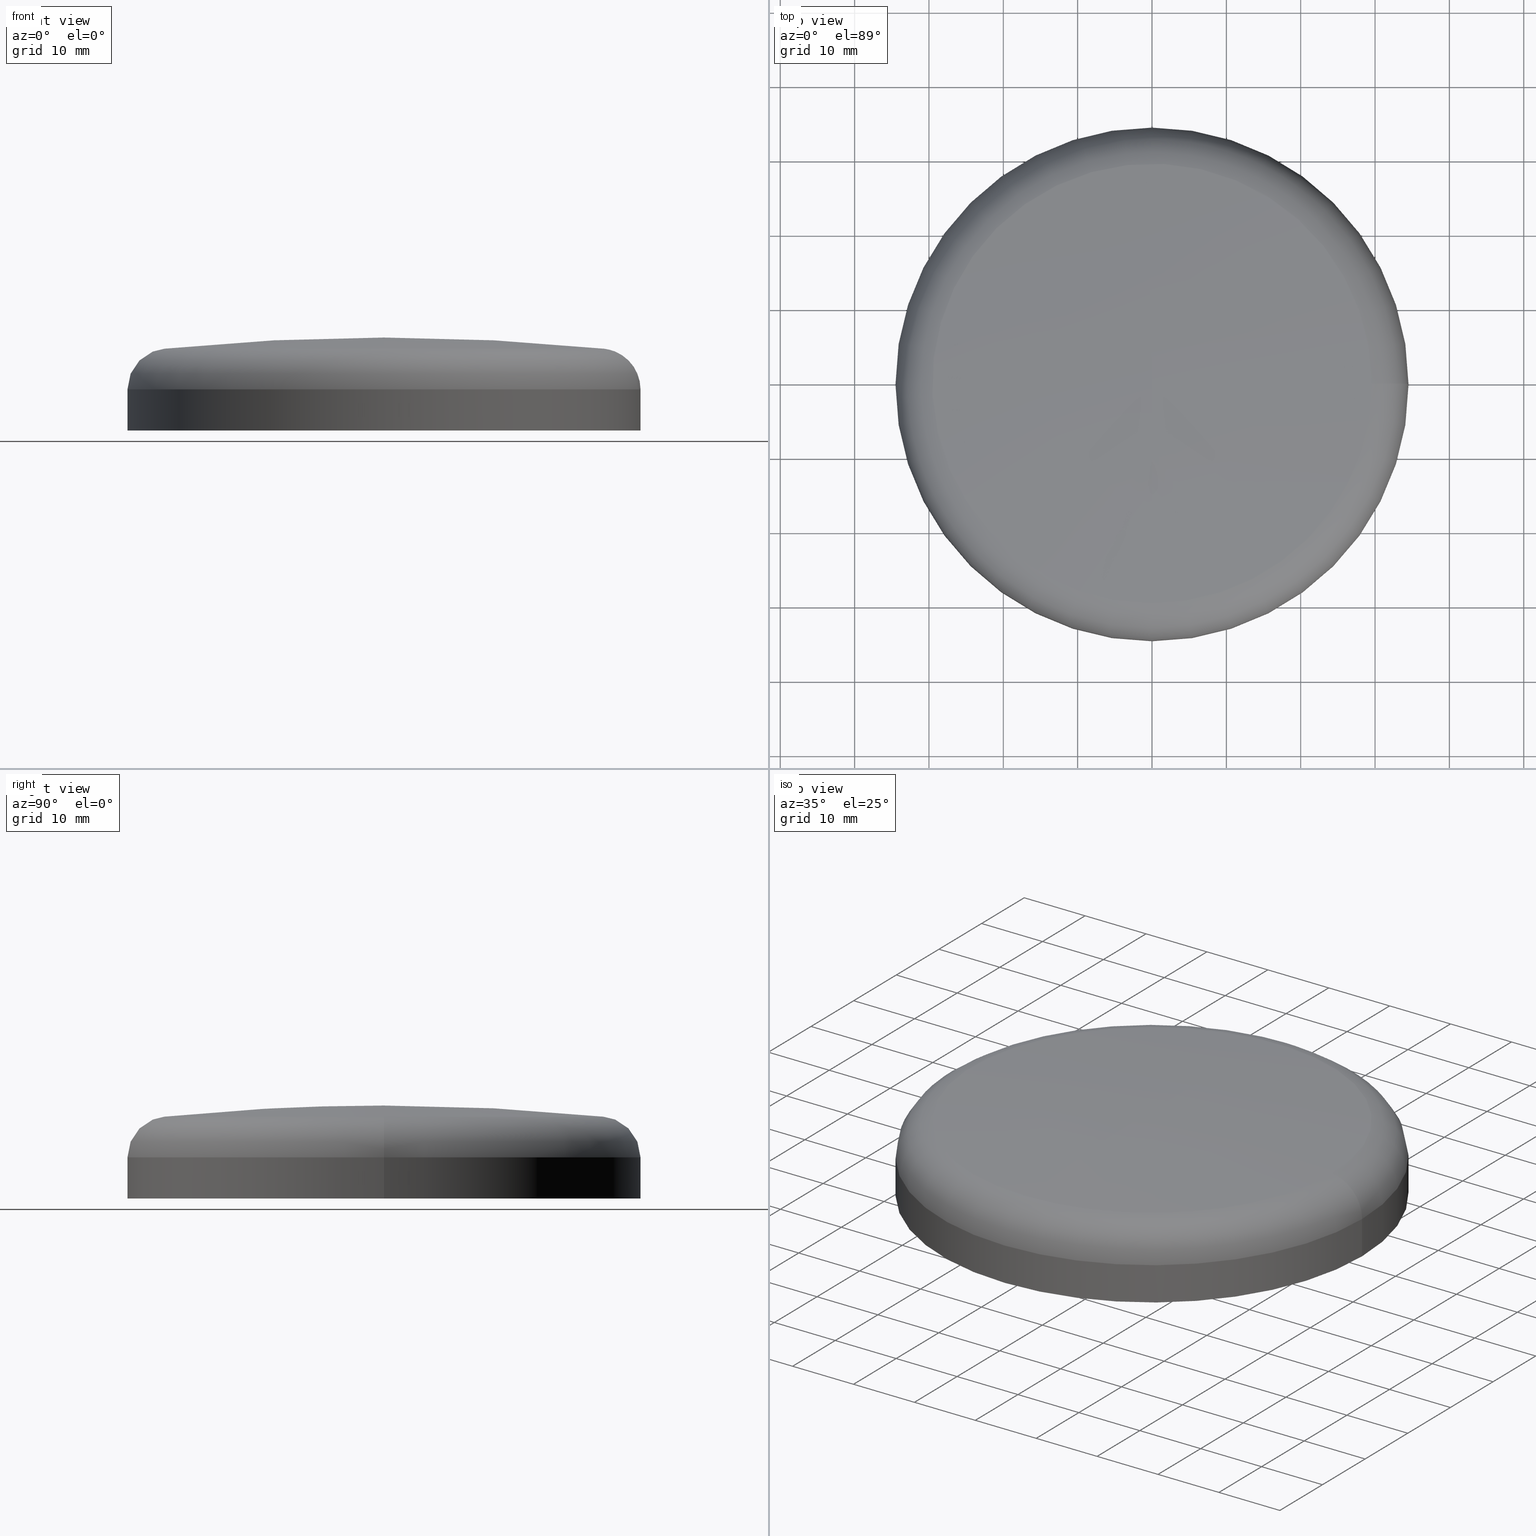
[diagram: canonical four-view strip — front | top / right | iso, engineering-drawing reading convention]
A machine part, canonical four-view strip (front | top / right | iso — engineering-drawing reading convention). The complete STEP part file that produces these views, byte-faithful:
ISO-10303-21;
HEADER;
/* Generated by software containing ST-Developer
 * from STEP Tools, Inc. (www.steptools.com) 
 */
/* OPTION: using custom schema-name function */

FILE_DESCRIPTION(
/* description */ (''),
/* implementation_level */ '2;1');

FILE_NAME(
/* name */ 'Deckel Modul 70.stp',
/* time_stamp */ '2013-03-05T11:58:21+01:00',
/* author */ (''),
/* organization */ (''),
/* preprocessor_version */ 'ST-DEVELOPER v11',
/* originating_system */ 'SIEMENS PLM Software NX 7.5',
/* authorisation */ '');

FILE_SCHEMA (('AUTOMOTIVE_DESIGN { 1 0 10303 214 1 1 1 1 }'));
ENDSEC;

DATA;
#10=SHAPE_REPRESENTATION_RELATIONSHIP('None',
'relationship between m.ne35C46alf-None and m.ne35C46alf-None',#22,#11);
#11=ADVANCED_BREP_SHAPE_REPRESENTATION('m.ne35C46alf-None',(#32),#245);
#12=SHAPE_DEFINITION_REPRESENTATION(#13,#22);
#13=PRODUCT_DEFINITION_SHAPE('','',#14);
#14=PRODUCT_DEFINITION(' ','',#16,#15);
#15=PRODUCT_DEFINITION_CONTEXT('part definition',#21,'design');
#16=PRODUCT_DEFINITION_FORMATION_WITH_SPECIFIED_SOURCE(' ',' ',#18,.NOT_KNOWN.);
#17=PRODUCT_RELATED_PRODUCT_CATEGORY('part','',(#18));
#18=PRODUCT('m.ne35C46alf','m.ne35C46alf',' ',(#19));
#19=PRODUCT_CONTEXT(' ',#21,'mechanical');
#20=APPLICATION_PROTOCOL_DEFINITION('international standard',
'automotive_design',2001,#21);
#21=APPLICATION_CONTEXT(
'core data for automotive mechanical design processes');
#22=SHAPE_REPRESENTATION('m.ne35C46alf-None',(#146),#245);
#23=PRESENTATION_LAYER_ASSIGNMENT('1','Layer 1',(#32));
#24=STYLED_ITEM('',(#25),#32);
#25=PRESENTATION_STYLE_ASSIGNMENT((#26));
#26=SURFACE_STYLE_USAGE(.BOTH.,#27);
#27=SURFACE_SIDE_STYLE('',(#28));
#28=SURFACE_STYLE_FILL_AREA(#29);
#29=FILL_AREA_STYLE('',(#30));
#30=FILL_AREA_STYLE_COLOUR('',#31);
#31=COLOUR_RGB('Silver Gray',0.6,0.6,0.6);
#32=MANIFOLD_SOLID_BREP('',#33);
#33=CLOSED_SHELL('',(#61,#62,#63,#64,#65,#66,#67,#68,#69,#70,#71));
#34=CONICAL_SURFACE('',#160,32.3414213562373,45.0000000000004);
#35=PLANE('',#154);
#36=PLANE('',#158);
#37=CYLINDRICAL_SURFACE('',#152,34.5);
#38=CYLINDRICAL_SURFACE('',#156,33.75);
#39=CYLINDRICAL_SURFACE('',#164,32.);
#40=TOROIDAL_SURFACE('',#150,29.,5.50000000000017);
#41=TOROIDAL_SURFACE('',#162,32.2,0.199999999999997);
#42=TOROIDAL_SURFACE('',#166,30.,2.00000000000002);
#43=FACE_BOUND('',#77,.T.);
#44=FACE_BOUND('',#78,.T.);
#45=FACE_BOUND('',#79,.T.);
#46=FACE_BOUND('',#80,.T.);
#47=FACE_BOUND('',#81,.T.);
#48=FACE_BOUND('',#82,.T.);
#49=FACE_BOUND('',#83,.T.);
#50=FACE_BOUND('',#84,.T.);
#51=FACE_BOUND('',#85,.T.);
#52=FACE_BOUND('',#86,.T.);
#53=FACE_BOUND('',#87,.T.);
#54=FACE_BOUND('',#88,.T.);
#55=FACE_BOUND('',#89,.T.);
#56=FACE_BOUND('',#90,.T.);
#57=FACE_BOUND('',#91,.T.);
#58=FACE_BOUND('',#92,.T.);
#59=FACE_BOUND('',#93,.T.);
#60=FACE_BOUND('',#94,.T.);
#61=ADVANCED_FACE('',(#74),#72,.T.);
#62=ADVANCED_FACE('',(#43,#44),#40,.T.);
#63=ADVANCED_FACE('',(#45,#46),#37,.T.);
#64=ADVANCED_FACE('',(#47,#48),#35,.F.);
#65=ADVANCED_FACE('',(#49,#50),#38,.F.);
#66=ADVANCED_FACE('',(#51,#52),#36,.F.);
#67=ADVANCED_FACE('',(#53,#54),#34,.T.);
#68=ADVANCED_FACE('',(#55,#56),#41,.T.);
#69=ADVANCED_FACE('',(#57,#58),#39,.F.);
#70=ADVANCED_FACE('',(#59,#60),#42,.F.);
#71=ADVANCED_FACE('',(#75),#73,.F.);
#72=SPHERICAL_SURFACE('',#148,291.951728391489);
#73=SPHERICAL_SURFACE('',#167,290.451728391482);
#74=FACE_OUTER_BOUND('',#76,.T.);
#75=FACE_OUTER_BOUND('',#95,.T.);
#76=EDGE_LOOP('',(#96));
#77=EDGE_LOOP('',(#97));
#78=EDGE_LOOP('',(#98));
#79=EDGE_LOOP('',(#99));
#80=EDGE_LOOP('',(#100));
#81=EDGE_LOOP('',(#101));
#82=EDGE_LOOP('',(#102));
#83=EDGE_LOOP('',(#103));
#84=EDGE_LOOP('',(#104));
#85=EDGE_LOOP('',(#105));
#86=EDGE_LOOP('',(#106));
#87=EDGE_LOOP('',(#107));
#88=EDGE_LOOP('',(#108));
#89=EDGE_LOOP('',(#109));
#90=EDGE_LOOP('',(#110));
#91=EDGE_LOOP('',(#111));
#92=EDGE_LOOP('',(#112));
#93=EDGE_LOOP('',(#113));
#94=EDGE_LOOP('',(#114));
#95=EDGE_LOOP('',(#115));
#96=ORIENTED_EDGE('',*,*,#126,.T.);
#97=ORIENTED_EDGE('',*,*,#126,.F.);
#98=ORIENTED_EDGE('',*,*,#127,.T.);
#99=ORIENTED_EDGE('',*,*,#127,.F.);
#100=ORIENTED_EDGE('',*,*,#128,.T.);
#101=ORIENTED_EDGE('',*,*,#128,.F.);
#102=ORIENTED_EDGE('',*,*,#129,.T.);
#103=ORIENTED_EDGE('',*,*,#129,.F.);
#104=ORIENTED_EDGE('',*,*,#130,.T.);
#105=ORIENTED_EDGE('',*,*,#130,.F.);
#106=ORIENTED_EDGE('',*,*,#131,.T.);
#107=ORIENTED_EDGE('',*,*,#131,.F.);
#108=ORIENTED_EDGE('',*,*,#132,.T.);
#109=ORIENTED_EDGE('',*,*,#132,.F.);
#110=ORIENTED_EDGE('',*,*,#133,.T.);
#111=ORIENTED_EDGE('',*,*,#133,.F.);
#112=ORIENTED_EDGE('',*,*,#134,.T.);
#113=ORIENTED_EDGE('',*,*,#134,.F.);
#114=ORIENTED_EDGE('',*,*,#135,.T.);
#115=ORIENTED_EDGE('',*,*,#135,.F.);
#116=VERTEX_POINT('',#214);
#117=VERTEX_POINT('',#217);
#118=VERTEX_POINT('',#220);
#119=VERTEX_POINT('',#223);
#120=VERTEX_POINT('',#226);
#121=VERTEX_POINT('',#229);
#122=VERTEX_POINT('',#232);
#123=VERTEX_POINT('',#235);
#124=VERTEX_POINT('',#238);
#125=VERTEX_POINT('',#241);
#126=EDGE_CURVE('',#116,#116,#136,.T.);
#127=EDGE_CURVE('',#117,#117,#137,.T.);
#128=EDGE_CURVE('',#118,#118,#138,.T.);
#129=EDGE_CURVE('',#119,#119,#139,.T.);
#130=EDGE_CURVE('',#120,#120,#140,.T.);
#131=EDGE_CURVE('',#121,#121,#141,.T.);
#132=EDGE_CURVE('',#122,#122,#142,.T.);
#133=EDGE_CURVE('',#123,#123,#143,.T.);
#134=EDGE_CURVE('',#124,#124,#144,.T.);
#135=EDGE_CURVE('',#125,#125,#145,.T.);
#136=CIRCLE('',#147,29.5568128385737);
#137=CIRCLE('',#149,34.5);
#138=CIRCLE('',#151,34.5);
#139=CIRCLE('',#153,33.75);
#140=CIRCLE('',#155,33.75);
#141=CIRCLE('',#157,32.75);
#142=CIRCLE('',#159,32.3414213562373);
#143=CIRCLE('',#161,32.);
#144=CIRCLE('',#163,32.);
#145=CIRCLE('',#165,30.2080070739544);
#146=AXIS2_PLACEMENT_3D('',#212,#168,#169);
#147=AXIS2_PLACEMENT_3D('',#213,#170,#171);
#148=AXIS2_PLACEMENT_3D('',#215,#172,#173);
#149=AXIS2_PLACEMENT_3D('',#216,#174,#175);
#150=AXIS2_PLACEMENT_3D('',#218,#176,#177);
#151=AXIS2_PLACEMENT_3D('',#219,#178,#179);
#152=AXIS2_PLACEMENT_3D('',#221,#180,#181);
#153=AXIS2_PLACEMENT_3D('',#222,#182,#183);
#154=AXIS2_PLACEMENT_3D('',#224,#184,#185);
#155=AXIS2_PLACEMENT_3D('',#225,#186,#187);
#156=AXIS2_PLACEMENT_3D('',#227,#188,#189);
#157=AXIS2_PLACEMENT_3D('',#228,#190,#191);
#158=AXIS2_PLACEMENT_3D('',#230,#192,#193);
#159=AXIS2_PLACEMENT_3D('',#231,#194,#195);
#160=AXIS2_PLACEMENT_3D('',#233,#196,#197);
#161=AXIS2_PLACEMENT_3D('',#234,#198,#199);
#162=AXIS2_PLACEMENT_3D('',#236,#200,#201);
#163=AXIS2_PLACEMENT_3D('',#237,#202,#203);
#164=AXIS2_PLACEMENT_3D('',#239,#204,#205);
#165=AXIS2_PLACEMENT_3D('',#240,#206,#207);
#166=AXIS2_PLACEMENT_3D('',#242,#208,#209);
#167=AXIS2_PLACEMENT_3D('',#243,#210,#211);
#168=DIRECTION('',(0.,0.,1.));
#169=DIRECTION('',(1.,0.,0.));
#170=DIRECTION('',(0.,0.,1.));
#171=DIRECTION('',(1.,0.,0.));
#172=DIRECTION('',(0.,-6.12323399573677E-017,1.));
#173=DIRECTION('',(0.,-1.,0.));
#174=DIRECTION('',(0.,0.,1.));
#175=DIRECTION('',(1.,0.,0.));
#176=DIRECTION('',(0.,0.,1.));
#177=DIRECTION('',(1.,0.,0.));
#178=DIRECTION('',(0.,0.,1.));
#179=DIRECTION('',(1.,0.,0.));
#180=DIRECTION('',(0.,0.,1.));
#181=DIRECTION('',(1.,0.,0.));
#182=DIRECTION('',(0.,0.,1.));
#183=DIRECTION('',(1.,0.,0.));
#184=DIRECTION('',(0.,0.,1.));
#185=DIRECTION('',(1.,0.,0.));
#186=DIRECTION('',(0.,0.,1.));
#187=DIRECTION('',(1.,0.,0.));
#188=DIRECTION('',(0.,0.,1.));
#189=DIRECTION('',(1.,0.,0.));
#190=DIRECTION('',(0.,0.,1.));
#191=DIRECTION('',(1.,0.,0.));
#192=DIRECTION('',(0.,0.,1.));
#193=DIRECTION('',(1.,0.,0.));
#194=DIRECTION('',(0.,0.,1.));
#195=DIRECTION('',(1.,0.,0.));
#196=DIRECTION('',(0.,0.,1.));
#197=DIRECTION('',(1.,0.,9.22107248386549E-017));
#198=DIRECTION('',(0.,0.,1.));
#199=DIRECTION('',(1.,0.,0.));
#200=DIRECTION('',(0.,0.,1.));
#201=DIRECTION('',(1.,0.,0.));
#202=DIRECTION('',(0.,0.,1.));
#203=DIRECTION('',(1.,0.,0.));
#204=DIRECTION('',(0.,0.,1.));
#205=DIRECTION('',(1.,0.,0.));
#206=DIRECTION('',(0.,0.,1.));
#207=DIRECTION('',(1.,0.,0.));
#208=DIRECTION('',(0.,0.,1.));
#209=DIRECTION('',(1.,0.,0.));
#210=DIRECTION('',(0.,6.12323399573677E-017,1.));
#211=DIRECTION('',(0.,1.,0.));
#212=CARTESIAN_POINT('',(0.,0.,0.));
#213=CARTESIAN_POINT('',(0.,0.,11.0000000000001));
#214=CARTESIAN_POINT('',(29.5568128385737,0.,11.0000000000001));
#215=CARTESIAN_POINT('',(0.,0.,-279.451728391489));
#216=CARTESIAN_POINT('',(0.,0.,5.52825809610859));
#217=CARTESIAN_POINT('',(34.5,0.,5.52825809610859));
#218=CARTESIAN_POINT('',(0.,0.,5.52825809610863));
#219=CARTESIAN_POINT('',(0.,0.,-4.92890681491531E-014));
#220=CARTESIAN_POINT('',(34.5,0.,-4.92890681491531E-014));
#221=CARTESIAN_POINT('',(0.,0.,0.));
#222=CARTESIAN_POINT('',(0.,0.,0.));
#223=CARTESIAN_POINT('',(33.75,0.,0.));
#224=CARTESIAN_POINT('',(0.,-33.75,-2.46445340745765E-014));
#225=CARTESIAN_POINT('',(0.,0.,1.6));
#226=CARTESIAN_POINT('',(33.75,0.,1.6));
#227=CARTESIAN_POINT('',(0.,0.,0.));
#228=CARTESIAN_POINT('',(0.,0.,1.6));
#229=CARTESIAN_POINT('',(32.75,0.,1.6));
#230=CARTESIAN_POINT('',(0.,-32.75,1.6));
#231=CARTESIAN_POINT('',(0.,0.,1.1914213562373));
#232=CARTESIAN_POINT('',(32.3414213562373,0.,1.1914213562373));
#233=CARTESIAN_POINT('',(0.,0.,1.1914213562373));
#234=CARTESIAN_POINT('',(0.,0.,1.33284271247461));
#235=CARTESIAN_POINT('',(32.,0.,1.33284271247461));
#236=CARTESIAN_POINT('',(0.,0.,1.33284271247461));
#237=CARTESIAN_POINT('',(0.,0.,7.4357053033965));
#238=CARTESIAN_POINT('',(32.,0.,7.4357053033965));
#239=CARTESIAN_POINT('',(0.,0.,0.));
#240=CARTESIAN_POINT('',(0.,0.,9.42485915796806));
#241=CARTESIAN_POINT('',(30.2080070739544,0.,9.42485915796806));
#242=CARTESIAN_POINT('',(0.,0.,7.4357053033965));
#243=CARTESIAN_POINT('',(0.,0.,-279.451728391489));
#244=MECHANICAL_DESIGN_GEOMETRIC_PRESENTATION_REPRESENTATION('',(#24),#245);
#245=(
GEOMETRIC_REPRESENTATION_CONTEXT(3)
GLOBAL_UNCERTAINTY_ASSIGNED_CONTEXT((#246))
GLOBAL_UNIT_ASSIGNED_CONTEXT((#252,#248,#247))
REPRESENTATION_CONTEXT('Deckel Modul 70','TOP_LEVEL_ASSEMBLY_PART')
);
#246=UNCERTAINTY_MEASURE_WITH_UNIT(LENGTH_MEASURE(2.E-005),#252,
'DISTANCE_ACCURACY_VALUE','Maximum Tolerance applied to model');
#247=(
NAMED_UNIT(*)
SI_UNIT($,.STERADIAN.)
SOLID_ANGLE_UNIT()
);
#248=(
CONVERSION_BASED_UNIT('DEGREE',#250)
NAMED_UNIT(#249)
PLANE_ANGLE_UNIT()
);
#249=DIMENSIONAL_EXPONENTS(0.,0.,0.,0.,0.,0.,0.);
#250=PLANE_ANGLE_MEASURE_WITH_UNIT(PLANE_ANGLE_MEASURE(0.0174532925),#251);
#251=(
NAMED_UNIT(*)
PLANE_ANGLE_UNIT()
SI_UNIT($,.RADIAN.)
);
#252=(
LENGTH_UNIT()
NAMED_UNIT(*)
SI_UNIT(.MILLI.,.METRE.)
);
ENDSEC;
END-ISO-10303-21;
